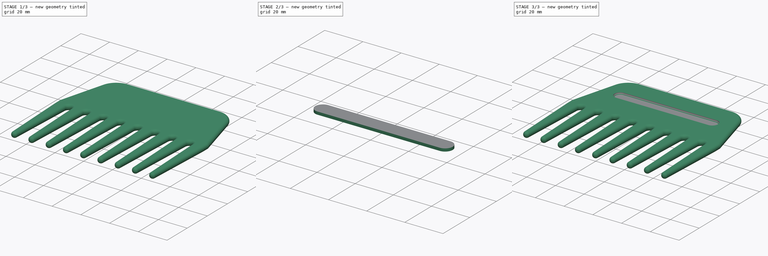
[diagram: build sequence overview — one tinted view per stage of 3, left to right]
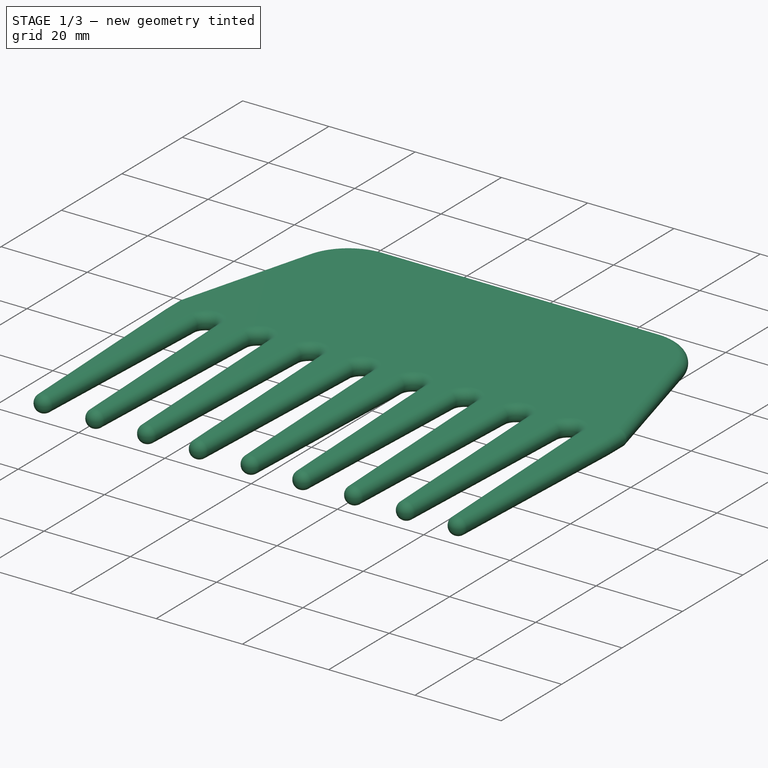
[diagram: stage 1 of 3 — iso view after this stage's code; geometry added in this stage tinted green]
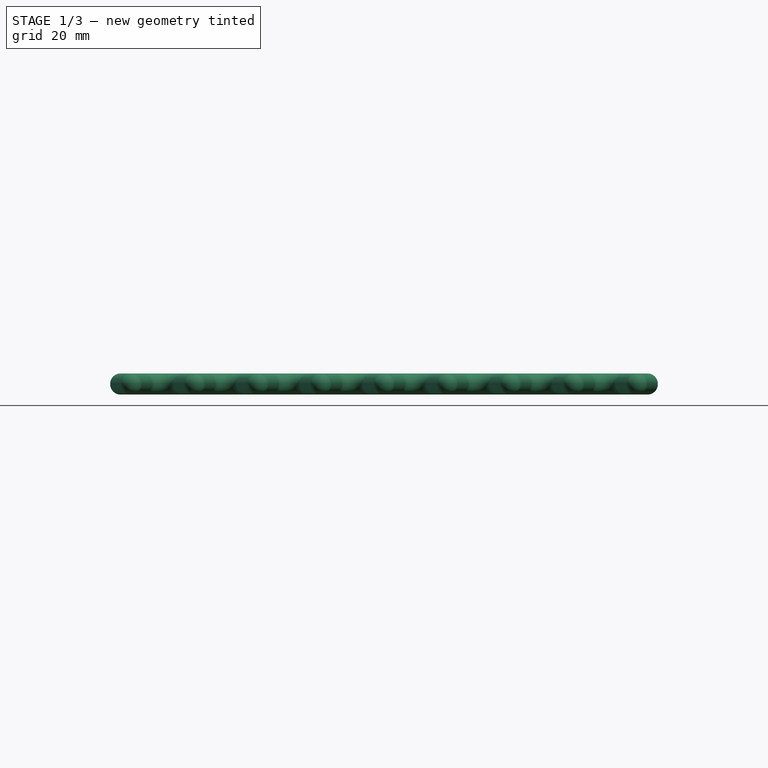
[diagram: stage 1 of 3 — front view after this stage's code; geometry added in this stage tinted green]
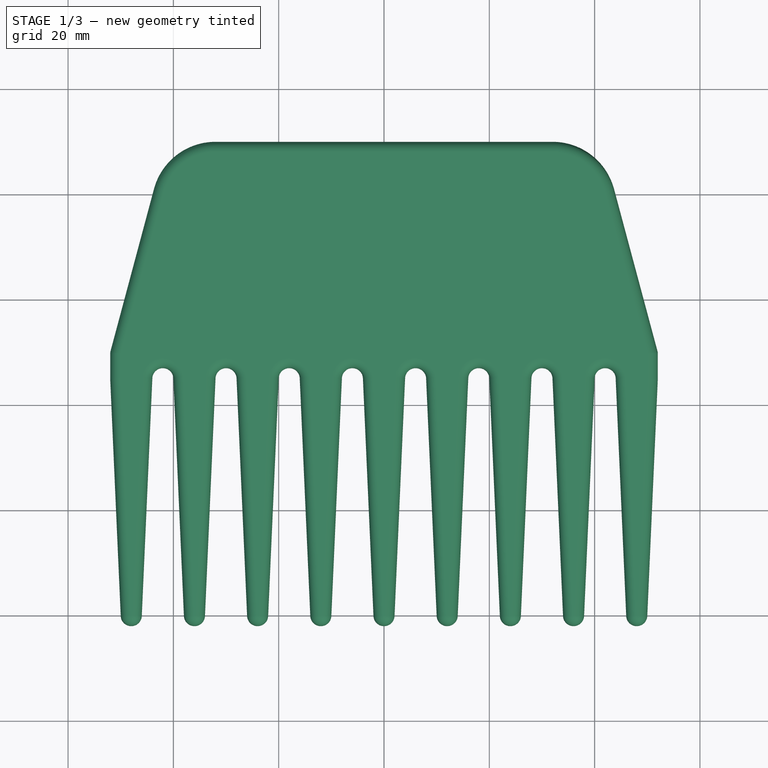
[diagram: stage 1 of 3 — top view after this stage's code; geometry added in this stage tinted green]
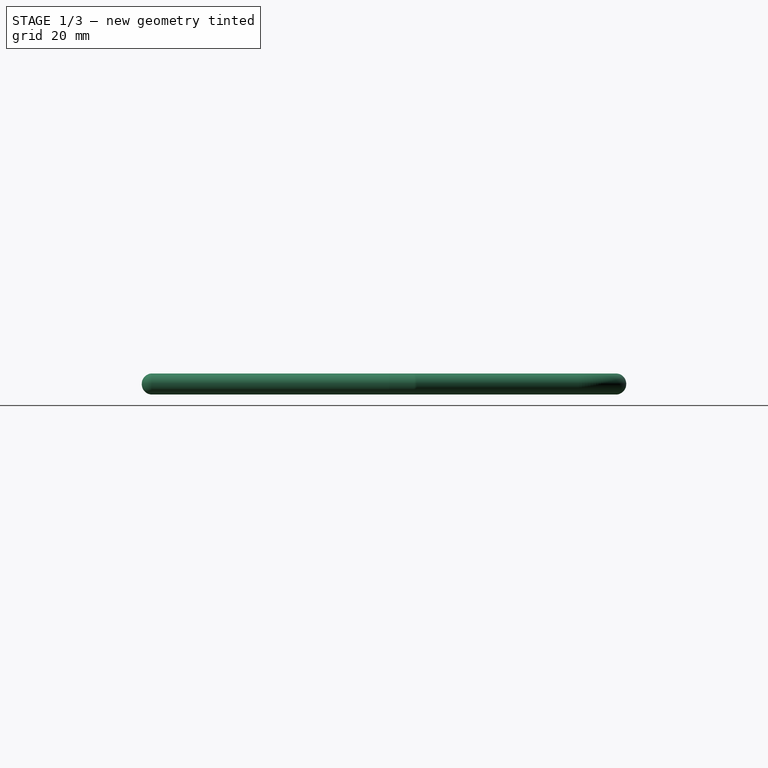
[diagram: stage 1 of 3 — right view after this stage's code; geometry added in this stage tinted green]
FCSTD DOCUMENT  (FreeCAD 0.20RUnknown)
Label: comb
License: All rights reserved
LicenseURL: http://en.wikipedia.org/wiki/All_rights_reserved
objects: Sketcher::SketchObject×2, Part::Extrusion×2, Part::Fillet×2, Part::Cut×1
note: 7 computed .brp shape members not serialized (recipe doc carries the construction recipe); baked Part::Feature solids carry a one-line shape summary decoded from their .brp

FEATURE [Sketcher::SketchObject] Sketch  label="main_s"
  FullyConstrained = true
  sketch-geometry (97):
    g0: ArcOfCircle CenterX=0 CenterY=0 CenterZ=0 NormalX=0 NormalY=0 NormalZ=1 AngleXU=0 Radius=2 StartAngle=3.14159 EndAngle=6.28319
    g1: LineSegment StartX=2 StartY=-5e-16 StartZ=0 EndX=4 EndY=45 EndZ=0
    g2: LineSegment StartX=-2 StartY=2e-16 StartZ=0 EndX=-4 EndY=45 EndZ=0
    g3: ArcOfCircle CenterX=6 CenterY=45 CenterZ=0 NormalX=0 NormalY=0 NormalZ=1 AngleXU=0 Radius=2 StartAngle=4e-16 EndAngle=3.14159
    g4: LineSegment StartX=4 StartY=45 StartZ=0 EndX=6 EndY=45 EndZ=0
    g5: ArcOfCircle CenterX=-6 CenterY=45 CenterZ=0 NormalX=0 NormalY=0 NormalZ=1 AngleXU=0 Radius=2 StartAngle=0 EndAngle=3.14159
    g6: LineSegment StartX=-4 StartY=45 StartZ=0 EndX=-6 EndY=45 EndZ=0
    g7: LineSegment StartX=-6 StartY=45 StartZ=0 EndX=-8 EndY=45 EndZ=0
    g8: LineSegment StartX=8 StartY=45 StartZ=0 EndX=10 EndY=0 EndZ=0
    g9: LineSegment StartX=14 StartY=-5e-16 StartZ=0 EndX=16 EndY=45 EndZ=0
    g10: LineSegment StartX=4 StartY=45 StartZ=0 EndX=-4 EndY=45 EndZ=0
    g11: LineSegment StartX=8 StartY=45 StartZ=0 EndX=16 EndY=45 EndZ=0
    g12: LineSegment StartX=16 StartY=45 StartZ=0 EndX=18 EndY=45 EndZ=0
    g13: LineSegment StartX=18 StartY=45 StartZ=0 EndX=20 EndY=45 EndZ=0
    g14: LineSegment StartX=-2 StartY=2e-16 StartZ=0 EndX=0 EndY=0 EndZ=0
    g15: LineSegment StartX=0 StartY=0 StartZ=0 EndX=2 EndY=-5e-16 EndZ=0
    g16: LineSegment StartX=10 StartY=0 StartZ=0 EndX=12 EndY=0 EndZ=0
    g17: LineSegment StartX=12 StartY=0 StartZ=0 EndX=14 EndY=-5e-16 EndZ=0
    g18: LineSegment StartX=6 StartY=45 StartZ=0 EndX=6 EndY=0 EndZ=0
    g19: LineSegment StartX=2 StartY=-5e-16 StartZ=0 EndX=6 EndY=0 EndZ=0
    g20: LineSegment StartX=6 StartY=0 StartZ=0 EndX=10 EndY=0 EndZ=0
    g21: ArcOfCircle CenterX=12 CenterY=0 CenterZ=0 NormalX=0 NormalY=0 NormalZ=1 AngleXU=0 Radius=2 StartAngle=3.14159 EndAngle=6.28319
    g22: LineSegment StartX=6 StartY=45 StartZ=0 EndX=8 EndY=45 EndZ=0
    g23: ArcOfCircle CenterX=18 CenterY=45 CenterZ=0 NormalX=0 NormalY=0 NormalZ=1 AngleXU=0 Radius=2 StartAngle=0 EndAngle=3.14159
    g24: LineSegment StartX=20 StartY=45 StartZ=0 EndX=22 EndY=0 EndZ=0
    g25: LineSegment StartX=26 StartY=-5e-16 StartZ=0 EndX=28 EndY=45 EndZ=0
    g26: LineSegment StartX=14 StartY=-5e-16 StartZ=0 EndX=22 EndY=0 EndZ=0
    g27: LineSegment StartX=22 StartY=0 StartZ=0 EndX=24 EndY=0 EndZ=0
    g28: LineSegment StartX=24 StartY=0 StartZ=0 EndX=26 EndY=-5e-16 EndZ=0
    g29: LineSegment StartX=26 StartY=-5e-16 StartZ=0 EndX=34 EndY=2e-16 EndZ=0
    g30: LineSegment StartX=34 StartY=2e-16 StartZ=0 EndX=36 EndY=0 EndZ=0
    g31: LineSegment StartX=36 StartY=0 StartZ=0 EndX=38 EndY=0 EndZ=0
    g32: LineSegment StartX=38 StartY=0 StartZ=0 EndX=46 EndY=2e-16 EndZ=0
    g33: LineSegment StartX=46 StartY=2e-16 StartZ=0 EndX=48 EndY=0 EndZ=0
    g34: LineSegment StartX=48 StartY=0 StartZ=0 EndX=50 EndY=0 EndZ=0
    g35: LineSegment StartX=20 StartY=45 StartZ=0 EndX=28 EndY=45 EndZ=0
    g36: LineSegment StartX=28 StartY=45 StartZ=0 EndX=30 EndY=45 EndZ=0
    g37: LineSegment StartX=30 StartY=45 StartZ=0 EndX=32 EndY=45 EndZ=0
    g38: LineSegment StartX=32 StartY=45 StartZ=0 EndX=40 EndY=45 EndZ=0
    g39: LineSegment StartX=40 StartY=45 StartZ=0 EndX=42 EndY=45 EndZ=0
    g40: LineSegment StartX=42 StartY=45 StartZ=0 EndX=44 EndY=45 EndZ=0
    g41: LineSegment StartX=44 StartY=45 StartZ=0 EndX=52 EndY=45 EndZ=0
    g42: ArcOfCircle CenterX=30 CenterY=45 CenterZ=0 NormalX=0 NormalY=0 NormalZ=1 AngleXU=0 Radius=2 StartAngle=0 EndAngle=3.14159
    g43: ArcOfCircle CenterX=42 CenterY=45 CenterZ=0 NormalX=0 NormalY=0 NormalZ=1 AngleXU=0 Radius=2 StartAngle=0 EndAngle=3.14159
    g44: ArcOfCircle CenterX=24 CenterY=0 CenterZ=0 NormalX=0 NormalY=0 NormalZ=1 AngleXU=0 Radius=2 StartAngle=3.14159 EndAngle=6.28319
    g45: ArcOfCircle CenterX=36 CenterY=0 CenterZ=0 NormalX=0 NormalY=0 NormalZ=1 AngleXU=0 Radius=2 StartAngle=3.14159 EndAngle=6.28319
    g46: ArcOfCircle CenterX=48 CenterY=0 CenterZ=0 NormalX=0 NormalY=0 NormalZ=1 AngleXU=0 Radius=2 StartAngle=3.14159 EndAngle=6.28319
    g47: LineSegment StartX=32 StartY=45 StartZ=0 EndX=34 EndY=0 EndZ=0
    g48: LineSegment StartX=38 StartY=0 StartZ=0 EndX=40 EndY=45 EndZ=0
    g49: LineSegment StartX=44 StartY=45 StartZ=0 EndX=46 EndY=0 EndZ=0
    g50: LineSegment StartX=50 StartY=0 StartZ=0 EndX=52 EndY=45 EndZ=0
    g51: LineSegment StartX=-2 StartY=2e-16 StartZ=0 EndX=-10 EndY=-5e-16 EndZ=0
    g52: LineSegment StartX=-10 StartY=-5e-16 StartZ=0 EndX=-12 EndY=0 EndZ=0
    g53: LineSegment StartX=-12 StartY=0 StartZ=0 EndX=-14 EndY=2e-16 EndZ=0
    g54: LineSegment StartX=-14 StartY=2e-16 StartZ=0 EndX=-22 EndY=-5e-16 EndZ=0
    g55: LineSegment StartX=-22 StartY=-5e-16 StartZ=0 EndX=-24 EndY=0 EndZ=0
    g56: LineSegment StartX=-24 StartY=0 StartZ=0 EndX=-22 EndY=0 EndZ=0
    g57: LineSegment StartX=-26 StartY=2e-16 StartZ=0 EndX=-34 EndY=-5e-16 EndZ=0
    g58: LineSegment StartX=-34 StartY=-5e-16 StartZ=0 EndX=-36 EndY=0 EndZ=0
    g59: LineSegment StartX=-36 StartY=0 StartZ=0 EndX=-38 EndY=0 EndZ=0
    g60: LineSegment StartX=-8 StartY=45 StartZ=0 EndX=-10 EndY=0 EndZ=0
    g61: LineSegment StartX=-8 StartY=45 StartZ=0 EndX=-16 EndY=45 EndZ=0
    g62: LineSegment StartX=-16 StartY=45 StartZ=0 EndX=-18 EndY=45 EndZ=0
    g63: LineSegment StartX=-18 StartY=45 StartZ=0 EndX=-20 EndY=45 EndZ=0
    g64: LineSegment StartX=-20 StartY=45 StartZ=0 EndX=-28 EndY=45 EndZ=0
    g65: LineSegment StartX=-28 StartY=45 StartZ=0 EndX=-30 EndY=45 EndZ=0
    g66: LineSegment StartX=-30 StartY=45 StartZ=0 EndX=-32 EndY=45 EndZ=0
    g67: LineSegment StartX=-32 StartY=45 StartZ=0 EndX=-40 EndY=45 EndZ=0
    g68: LineSegment StartX=-40 StartY=45 StartZ=0 EndX=-42 EndY=45 EndZ=0
    g69: LineSegment StartX=-42 StartY=45 StartZ=0 EndX=-44 EndY=45 EndZ=0
    g70: LineSegment StartX=-44 StartY=45 StartZ=0 EndX=-52 EndY=45 EndZ=0
    g71: LineSegment StartX=-14 StartY=2e-16 StartZ=0 EndX=-16 EndY=45 EndZ=0
    g72: LineSegment StartX=-22 StartY=-5e-16 StartZ=0 EndX=-20 EndY=45 EndZ=0
    g73: ArcOfCircle CenterX=-18 CenterY=45 CenterZ=0 NormalX=0 NormalY=0 NormalZ=1 AngleXU=0 Radius=2 StartAngle=0 EndAngle=3.14159
    g74: ArcOfCircle CenterX=-12 CenterY=0 CenterZ=0 NormalX=0 NormalY=0 NormalZ=1 AngleXU=0 Radius=2 StartAngle=3.14159 EndAngle=6.28319
    g75: ArcOfCircle CenterX=-24 CenterY=0 CenterZ=0 NormalX=0 NormalY=0 NormalZ=1 AngleXU=0 Radius=2 StartAngle=3.14159 EndAngle=6.28319
    g76: LineSegment StartX=-24 StartY=0 StartZ=0 EndX=-26 EndY=2e-16 EndZ=0
    g77: LineSegment StartX=-26 StartY=2e-16 StartZ=0 EndX=-28 EndY=45 EndZ=0
    g78: LineSegment StartX=-32 StartY=45 StartZ=0 EndX=-34 EndY=0 EndZ=0
    g79: ArcOfCircle CenterX=-30 CenterY=45 CenterZ=0 NormalX=0 NormalY=0 NormalZ=1 AngleXU=0 Radius=2 StartAngle=0 EndAngle=3.14159
    g80: ArcOfCircle CenterX=-36 CenterY=0 CenterZ=0 NormalX=0 NormalY=0 NormalZ=1 AngleXU=0 Radius=2 StartAngle=3.14159 EndAngle=6.28319
    g81: LineSegment StartX=-38 StartY=0 StartZ=0 EndX=-40 EndY=45 EndZ=0
    g82: LineSegment StartX=-38 StartY=0 StartZ=0 EndX=-46 EndY=-5e-16 EndZ=0
    g83: LineSegment StartX=-46 StartY=-5e-16 StartZ=0 EndX=-48 EndY=0 EndZ=0
    g84: LineSegment StartX=-48 StartY=0 StartZ=0 EndX=-50 EndY=2e-16 EndZ=0
    g85: ArcOfCircle CenterX=-48 CenterY=0 CenterZ=0 NormalX=0 NormalY=0 NormalZ=1 AngleXU=0 Radius=2 StartAngle=3.14159 EndAngle=6.28319
    g86: LineSegment StartX=-44 StartY=45 StartZ=0 EndX=-46 EndY=0 EndZ=0
    g87: ArcOfCircle CenterX=-42 CenterY=45 CenterZ=0 NormalX=0 NormalY=0 NormalZ=1 AngleXU=0 Radius=2 StartAngle=0 EndAngle=3.14159
    g88: LineSegment StartX=-52 StartY=45 StartZ=0 EndX=-50 EndY=0 EndZ=0
    g89: LineSegment StartX=-52 StartY=45 StartZ=0 EndX=-52 EndY=50 EndZ=0
    g90: LineSegment StartX=-52 StartY=50 StartZ=0 EndX=-43.6844 EndY=81.0342 EndZ=0
    g91: LineSegment StartX=-32 StartY=90 StartZ=0 EndX=0 EndY=90 EndZ=0
    g92: ArcOfCircle CenterX=-32 CenterY=77.9034 CenterZ=0 NormalX=0 NormalY=0 NormalZ=1 AngleXU=0 Radius=12.0966 StartAngle=1.5708 EndAngle=2.87979
    g93: LineSegment StartX=0 StartY=90 StartZ=0 EndX=32 EndY=90 EndZ=0
    g94: LineSegment StartX=52 StartY=45 StartZ=0 EndX=52 EndY=50 EndZ=0
    g95: LineSegment StartX=52 StartY=50 StartZ=0 EndX=43.6844 EndY=81.0342 EndZ=0
    g96: ArcOfCircle CenterX=32 CenterY=77.9034 CenterZ=0 NormalX=0 NormalY=0 NormalZ=1 AngleXU=0 Radius=12.0966 StartAngle=0.261799 EndAngle=1.5708
  constraints (252):
    c: Coincident(g0,g-1)
    c: PointOnObject(g0,g-1)
    c: PointOnObject(g0,g-1)
    c: DistanceX(g0,g0) = 4
    c: Coincident(g1,g0)
    c: Coincident(g2,g0)
    c: Symmetric(g2,g1,g-2)
    c: DistanceX(g2,g1) = 8
    c: Coincident(g3,g1)
    c: Coincident(g4,g1)
    c: Coincident(g4,g3)
    c: Horizontal(g4)
    c: DistanceX(g1,g3) = 4
    c: Coincident(g5,g2)
    c: Coincident(g6,g2)
    c: Coincident(g6,g5)
    c: Horizontal(g6)
    c: Coincident(g7,g5)
    c: Coincident(g7,g5)
    c: Horizontal(g7)
    c: Equal(g4,g6)
    c: DistanceY(g0,g3) = 45
    c: Coincident(g8,g3)
    c: PointOnObject(g8,g-1)
    c: PointOnObject(g9,g-1)
    c: Coincident(g10,g1)
    c: Coincident(g2,g10)
    c: Coincident(g11,g3)
    c: Coincident(g11,g9)
    c: Horizontal(g11)
    c: Equal(g10,g11)
    c: Coincident(g12,g9)
    c: Horizontal(g12)
    c: Coincident(g13,g12)
    c: Horizontal(g13)
    c: Coincident(g14,g0)
    c: Coincident(g15,g14)
    c: Coincident(g15,g0)
    c: Coincident(g0,g14)
    c: Coincident(g16,g8)
    c: PointOnObject(g16,g-1)
    c: Coincident(g17,g16)
    c: Coincident(g17,g9)
    c: Equal(g14,g16)
    c: Coincident(g18,g3)
    c: PointOnObject(g18,g-1)
    c: Vertical(g18)
    c: Coincident(g19,g0)
    c: Coincident(g19,g18)
    c: Coincident(g20,g18)
    c: Coincident(g20,g8)
    c: Equal(g19,g20)
    c: Coincident(g21,g16)
    c: Coincident(g21,g8)
    c: Coincident(g22,g3)
    c: Coincident(g22,g3)
    c: Horizontal(g22)
    c: Coincident(g21,g9)
    c: Coincident(g23,g12)
    c: Coincident(g23,g9)
    c: Coincident(g23,g13)
    c: Coincident(g24,g23)
    c: PointOnObject(g24,g-1)
    c: PointOnObject(g25,g-1)
    c: Coincident(g26,g9)
    c: Coincident(g26,g24)
    c: Coincident(g27,g24)
    c: PointOnObject(g27,g-1)
    c: Coincident(g28,g27)
    c: Coincident(g28,g25)
    c: Coincident(g29,g25)
    c: PointOnObject(g29,g-1)
    c: Coincident(g30,g29)
    c: PointOnObject(g30,g-1)
    c: Coincident(g31,g30)
    c: PointOnObject(g31,g-1)
    c: Coincident(g32,g31)
    c: PointOnObject(g32,g-1)
    c: Coincident(g33,g32)
    c: PointOnObject(g33,g-1)
    c: Coincident(g34,g33)
    c: PointOnObject(g34,g-1)
    c: DistanceX(g26,g26) = 8
    c: Equal(g17,g27)
    c: Equal(g26,g29)
    c: Equal(g28,g30)
    c: Equal(g32,g29)
    c: Equal(g31,g33)
    c: Equal(g22,g12)
    c: Coincident(g35,g23)
    c: Coincident(g35,g25)
    c: Horizontal(g35)
    c: Equal(g11,g35)
    c: Coincident(g36,g25)
    c: Horizontal(g36)
    c: Coincident(g37,g36)
    c: Horizontal(g37)
    c: Coincident(g38,g37)
    c: Horizontal(g38)
    c: Coincident(g39,g38)
    c: Horizontal(g39)
    c: Coincident(g40,g39)
    c: Horizontal(g40)
    c: Coincident(g41,g40)
    c: Horizontal(g41)
    c: Equal(g13,g36)
    c: Equal(g35,g38)
    c: Equal(g37,g39)
    c: Equal(g38,g41)
    c: Coincident(g42,g36)
    c: Coincident(g42,g25)
    c: Coincident(g42,g37)
    c: Coincident(g43,g39)
    c: Coincident(g43,g38)
    c: Coincident(g43,g40)
    c: Coincident(g44,g27)
    c: Coincident(g44,g24)
    c: Coincident(g44,g25)
    c: Coincident(g45,g30)
    c: Coincident(g45,g29)
    c: Coincident(g45,g31)
    c: Coincident(g46,g33)
    c: Coincident(g46,g32)
    c: Coincident(g46,g34)
    c: Coincident(g47,g42)
    c: Coincident(g47,g45)
    c: Coincident(g48,g45)
    c: Coincident(g49,g46)
    c: Coincident(g50,g46)
    c: Coincident(g43,g48)
    c: Coincident(g43,g49)
    c: Coincident(g50,g41)
    c: Coincident(g51,g0)
    c: PointOnObject(g51,g-1)
    c: Coincident(g52,g51)
    c: PointOnObject(g52,g-1)
    c: Coincident(g53,g52)
    c: PointOnObject(g53,g-1)
    c: Coincident(g54,g53)
    c: PointOnObject(g54,g-1)
    c: Coincident(g55,g54)
    c: Coincident(g56,g55)
    c: PointOnObject(g56,g-1)
    c: PointOnObject(g57,g-1)
    c: PointOnObject(g57,g-1)
    c: Coincident(g58,g57)
    c: PointOnObject(g58,g-1)
    c: Coincident(g59,g58)
    c: PointOnObject(g59,g-1)
    c: Equal(g26,g51)
    c: Equal(g14,g52)
    c: Equal(g51,g54)
    c: Equal(g53,g55)
    c: Equal(g55,g56)
    c: Coincident(g60,g5)
    c: Coincident(g60,g51)
    c: Coincident(g61,g5)
    c: Horizontal(g61)
    c: Coincident(g62,g61)
    c: Horizontal(g62)
    c: Coincident(g63,g62)
    c: Horizontal(g63)
    c: Coincident(g64,g63)
    c: Horizontal(g64)
    c: Horizontal(g65)
    c: Coincident(g66,g65)
    c: Horizontal(g66)
    c: Coincident(g67,g66)
    c: Horizontal(g67)
    c: Equal(g11,g61)
    c: Equal(g62,g7)
    c: Equal(g64,g61)
    c: Coincident(g65,g64)
    c: Equal(g63,g65)
    c: Equal(g64,g67)
    c: Coincident(g68,g67)
    c: Horizontal(g68)
    c: Coincident(g69,g68)
    c: Horizontal(g69)
    c: Coincident(g70,g69)
    c: Horizontal(g70)
    c: Equal(g66,g68)
    c: Equal(g67,g70)
    c: Coincident(g61,g71)
    c: Coincident(g71,g53)
    c: Coincident(g63,g72)
    c: Coincident(g72,g54)
    c: PointOnObject(g55,g-1)
    c: Equal(g54,g57)
    c: Coincident(g73,g62)
    c: Coincident(g73,g72)
    c: Coincident(g73,g71)
    c: Coincident(g74,g52)
    c: Coincident(g74,g71)
    c: Coincident(g74,g60)
    c: Coincident(g55,g75)
    c: Coincident(g75,g72)
    c: Coincident(g76,g75)
    c: Coincident(g76,g57)
    c: Coincident(g57,g75)
    c: Coincident(g77,g75)
    c: Coincident(g64,g77)
    c: Coincident(g78,g66)
    c: Coincident(g57,g78)
    c: Coincident(g79,g65)
    c: Coincident(g79,g77)
    c: Coincident(g79,g78)
    c: Coincident(g80,g58)
    c: Coincident(g80,g78)
    c: Coincident(g80,g59)
    c: Equal(g58,g76)
    c: Coincident(g81,g80)
    c: Coincident(g81,g67)
    c: Coincident(g82,g80)
    c: PointOnObject(g82,g-1)
    c: Coincident(g83,g82)
    c: PointOnObject(g83,g-1)
    c: Coincident(g84,g83)
    c: PointOnObject(g84,g-1)
    c: Equal(g57,g82)
    c: Coincident(g85,g83)
    c: Coincident(g85,g84)
    c: Coincident(g85,g82)
    c: Coincident(g85,g86)
    c: Coincident(g86,g69)
    c: Coincident(g87,g68)
    c: Coincident(g87,g81)
    c: Coincident(g87,g86)
    c: Coincident(g88,g70)
    c: Coincident(g88,g85)
    c: Equal(g83,g58)
    c: Coincident(g89,g88)
    c: Vertical(g89)
    c: Coincident(g90,g89)
    c: PointOnObject(g91,g-2)
    c: Horizontal(g91)
    c: DistanceY(g89,g89) = 5
    c: Tangent(g92,g91) = 1.5708
    c: Tangent(g92,g90) = 1.5708
    c: DistanceY(g2,g91) = 45
    c: Angle(g89,g90) = 2.87979
    c: Coincident(g93,g91)
    c: Horizontal(g93)
    c: Coincident(g94,g50)
    c: Vertical(g94)
    c: Coincident(g95,g94)
    c: Equal(g94,g89)
    c: Angle(g95,g94) = 2.87979
    c: Tangent(g96,g93) = 1.5708
    c: Tangent(g96,g95) = -1.5708
    c: Equal(g93,g91)
    c: DistanceX(g91,g91) = 32
FEATURE [Part::Extrusion] Extrude  label="main_e"
  Base = -> Sketch
  Dir = (0,0,1)
  DirMode = 2
  FaceMakerClass = Part::FaceMakerBullseye
  LengthFwd = 4
  LengthRev = 0
  Solid = true
  Symmetric = false
FEATURE [Part::Fillet] Fillet  label="main_fillet"
  Base = -> Extrude
  Edges = 124 edges r=1.95: [Edge1,Edge2,Edge3,Edge4,Edge5,Edge6,Edge7,Edge8,Edge9,Edge10,Edge11,Edge12,Edge13,Edge14,Edge15,Edge16,Edge17,Edge18,Edge19,Edge20,Edge21,Edge22,Edge23,Edge24,Edge25,Edge26,Edge27,Edge28,Edge29,Edge30,Edge31,Edge32,Edge33,Edge34,Edge35,Edge36,Edge37,Edge38,Edge39,Edge40,Edge41,Edge42,Edge43,Edge44,+80 more]
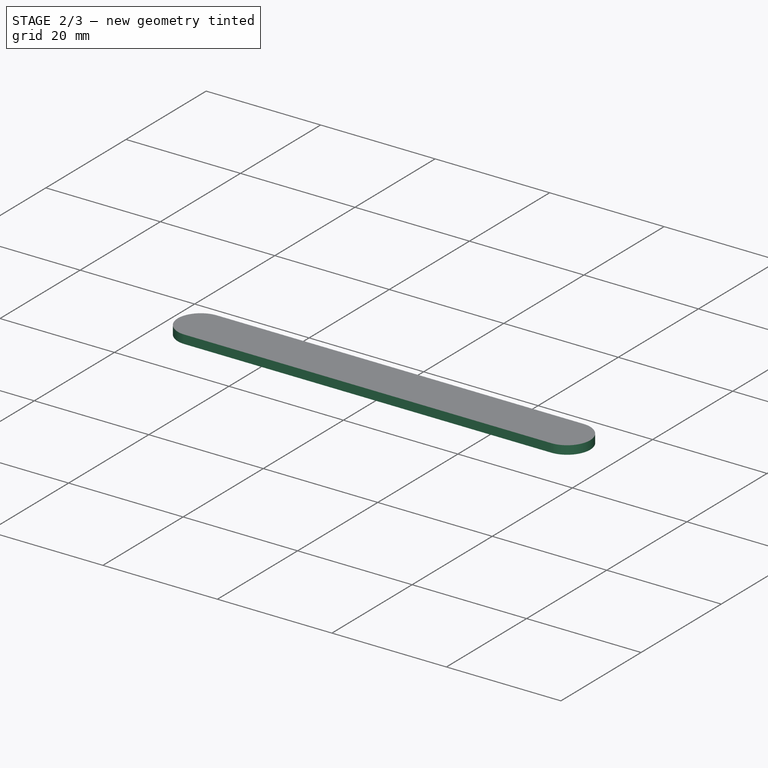
[diagram: stage 2 of 3 — iso view after this stage's code; geometry added in this stage tinted green]
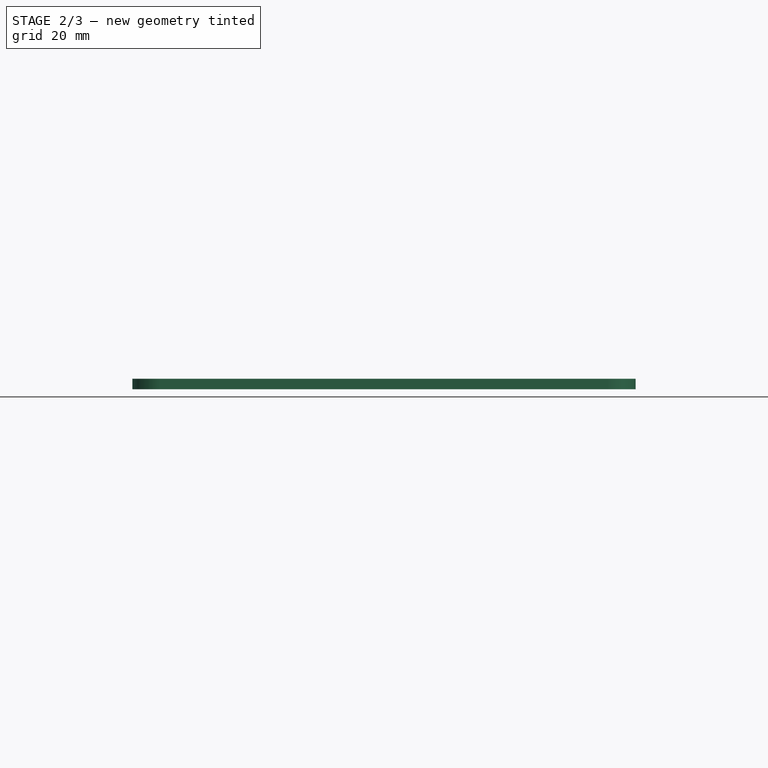
[diagram: stage 2 of 3 — front view after this stage's code; geometry added in this stage tinted green]
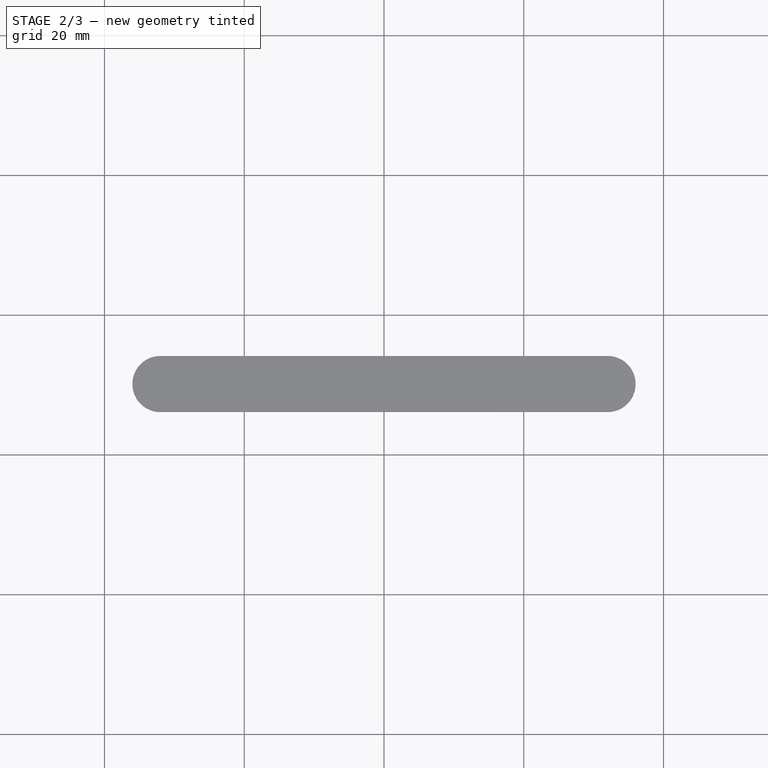
[diagram: stage 2 of 3 — top view after this stage's code; geometry added in this stage tinted green]
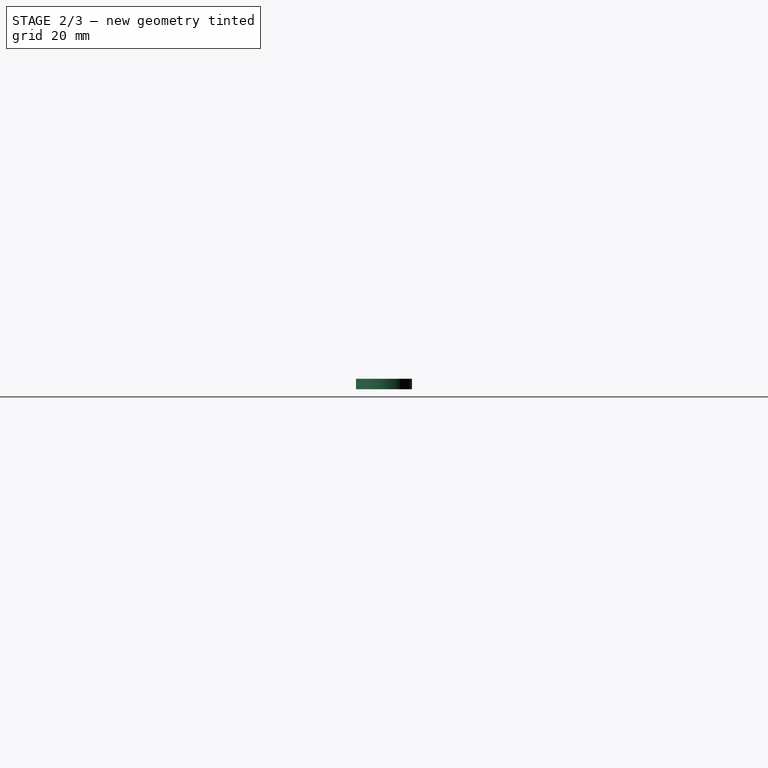
[diagram: stage 2 of 3 — right view after this stage's code; geometry added in this stage tinted green]
FEATURE [Sketcher::SketchObject] Sketch001  label="hole_s"
  ExternalGeometry = -> [Fillet]
  FullyConstrained = true
  MapMode = 5
  Placement = pos=(0,0,4) rot=(0,0,1;0rad)
  Support = -> [Fillet]
  sketch-geometry (7):
    g0: ArcOfCircle CenterX=-32 CenterY=70.124 CenterZ=0 NormalX=0 NormalY=0 NormalZ=1 AngleXU=0 Radius=4 StartAngle=1.5708 EndAngle=4.71239
    g1: ArcOfCircle CenterX=32 CenterY=70.124 CenterZ=0 NormalX=0 NormalY=0 NormalZ=1 AngleXU=0 Radius=4 StartAngle=4.71239 EndAngle=7.85398
    g2: LineSegment StartX=-32 StartY=66.124 StartZ=0 EndX=32 EndY=66.124 EndZ=0
    g3: LineSegment StartX=32 StartY=74.124 StartZ=0 EndX=-32 EndY=74.124 EndZ=0
    g4: LineSegment StartX=-51.9336 StartY=50.248 StartZ=0 EndX=51.9336 EndY=50.248 EndZ=0
    g5: LineSegment StartX=-32 StartY=66.124 StartZ=0 EndX=-32 EndY=50.248 EndZ=0
    g6: LineSegment StartX=-32 StartY=74.124 StartZ=0 EndX=-32 EndY=90 EndZ=0
  constraints (17):
    c: Tangent(g0,g2) = -1.5708
    c: Tangent(g2,g1) = -1.5708
    c: Tangent(g1,g3) = -1.5708
    c: Tangent(g3,g0) = -1.5708
    c: Equal(g0,g1)
    c: Symmetric(g0,g1,g-2)
    c: DistanceY(g1,g1) = 8
    c: DistanceX(g0,g1) = 64
    c: Coincident(g4,g-3)
    c: Coincident(g4,g-4)
    c: Coincident(g5,g0)
    c: PointOnObject(g5,g4)
    c: Vertical(g5)
    c: Coincident(g6,g0)
    c: PointOnObject(g6,g-6)
    c: Vertical(g6)
    c: Equal(g6,g5)
FEATURE [Part::Extrusion] Extrude001  label="hole_e"
  Base = -> Sketch001
  Dir = (0,0,1)
  DirMode = 2
  FaceMakerClass = Part::FaceMakerBullseye
  LengthFwd = 0
  LengthRev = 1.5
  Solid = true
  Symmetric = false
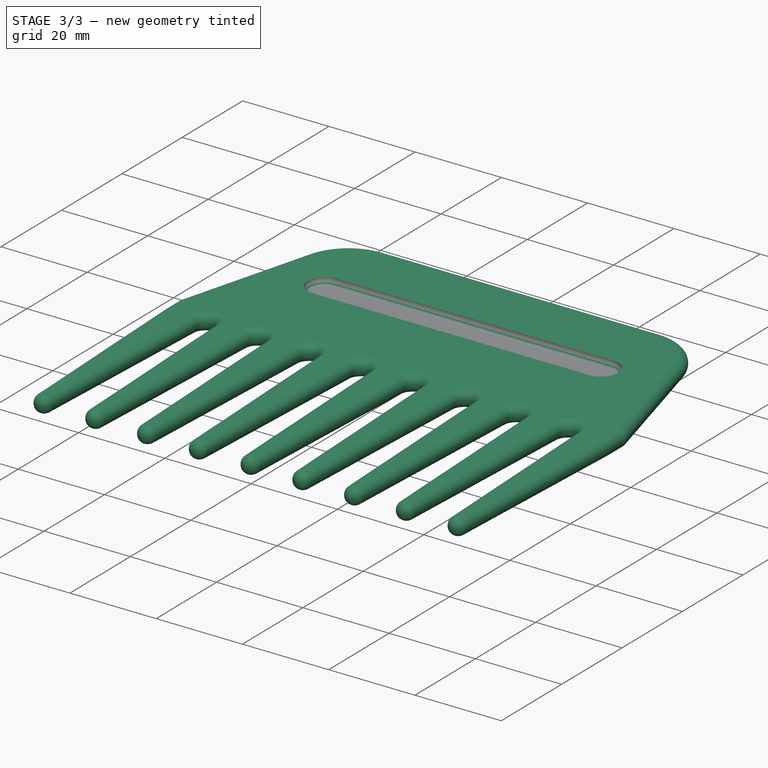
[diagram: stage 3 of 3 — iso view after this stage's code; geometry added in this stage tinted green]
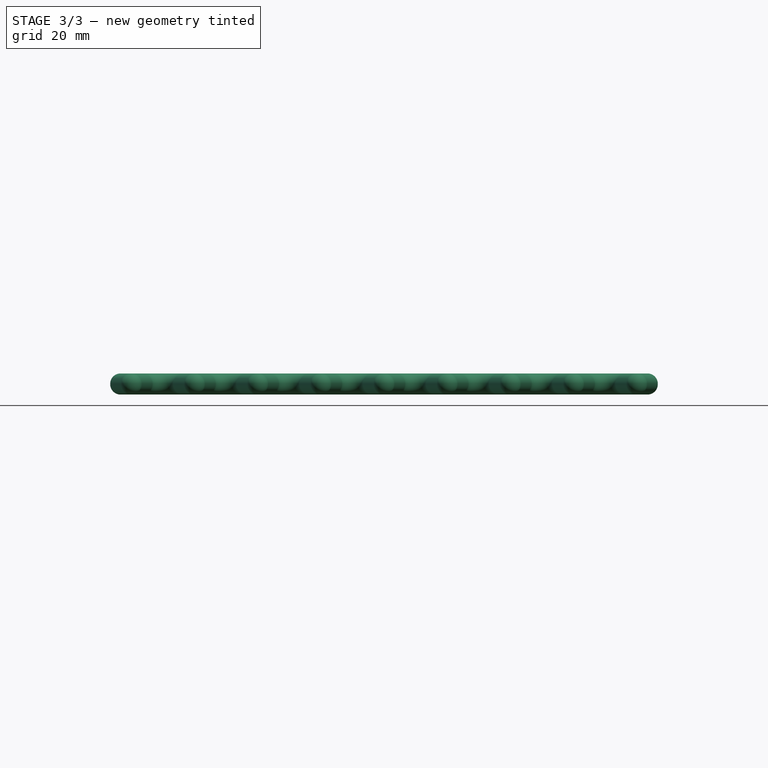
[diagram: stage 3 of 3 — front view after this stage's code; geometry added in this stage tinted green]
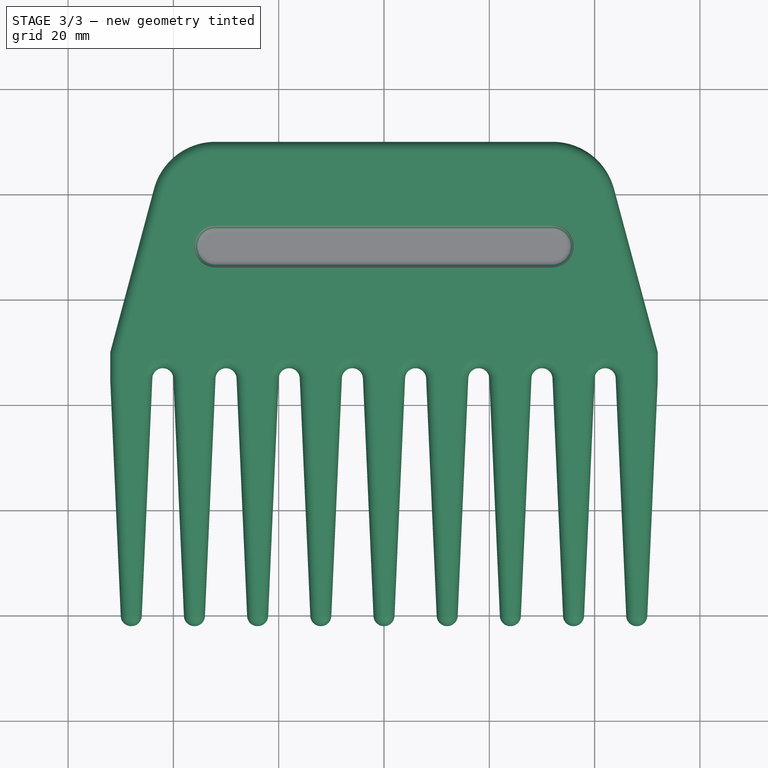
[diagram: stage 3 of 3 — top view after this stage's code; geometry added in this stage tinted green]
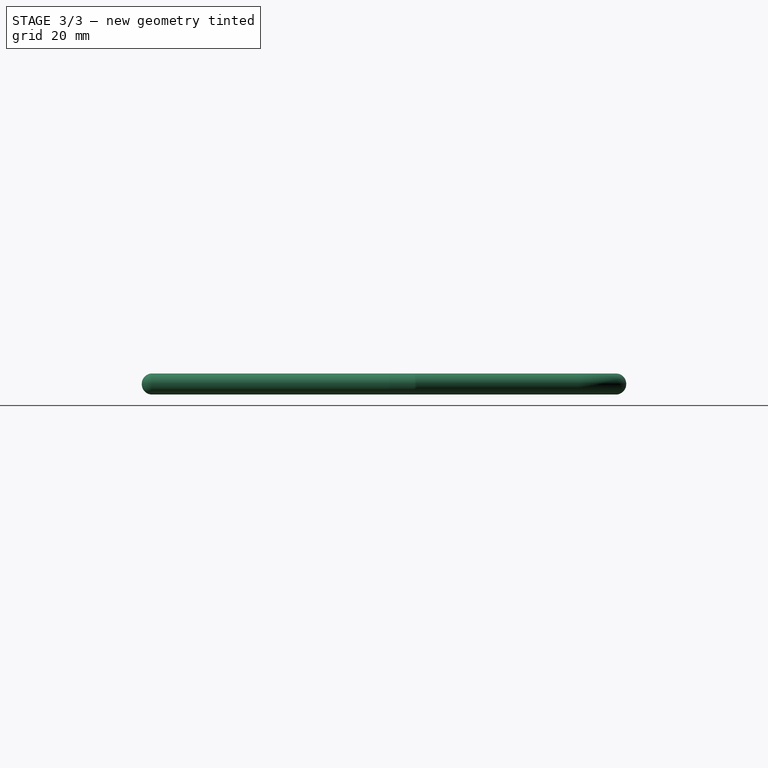
[diagram: stage 3 of 3 — right view after this stage's code; geometry added in this stage tinted green]
FEATURE [Part::Fillet] Fillet001
  Base = -> Extrude001
  Edges = 4 edges r=1.4: [Edge3,Edge6,Edge9,Edge11]
FEATURE [Part::Cut] Cut  label="comb"
  Base = -> Fillet
  Tool = -> Fillet001
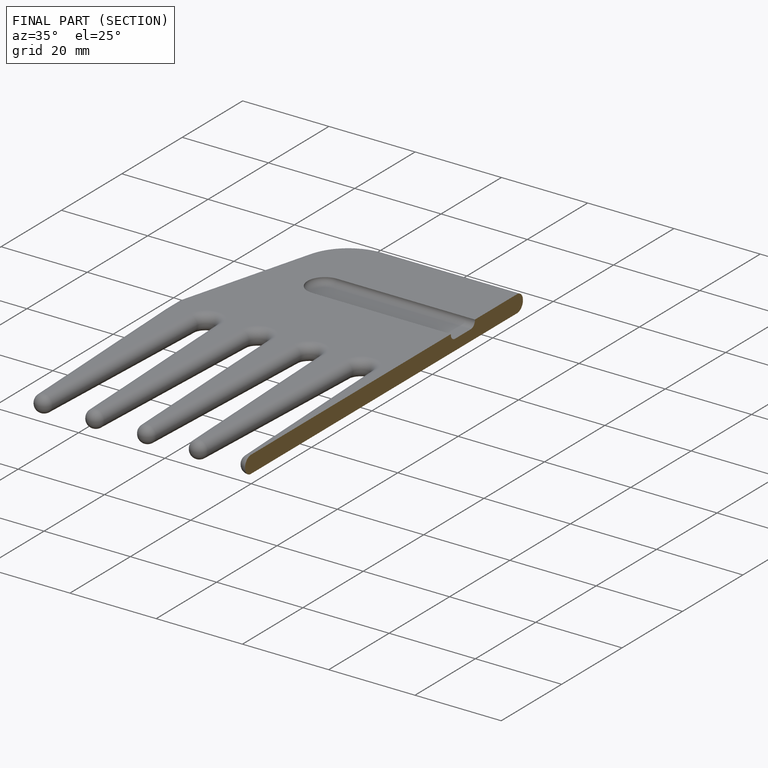
[diagram: finished part — half-section view (interior)]
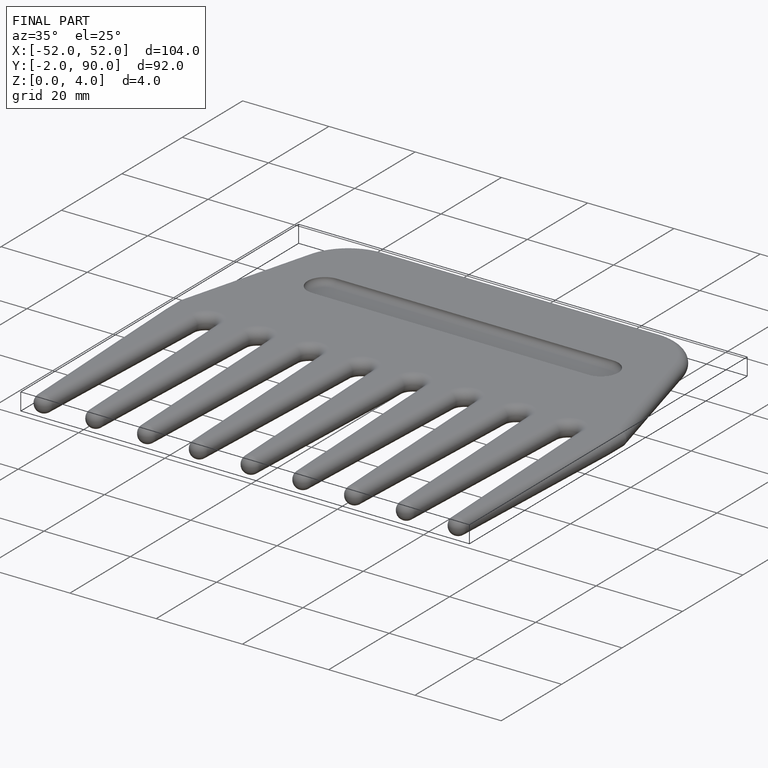
[diagram: finished part — iso view with bounding-box wireframe]
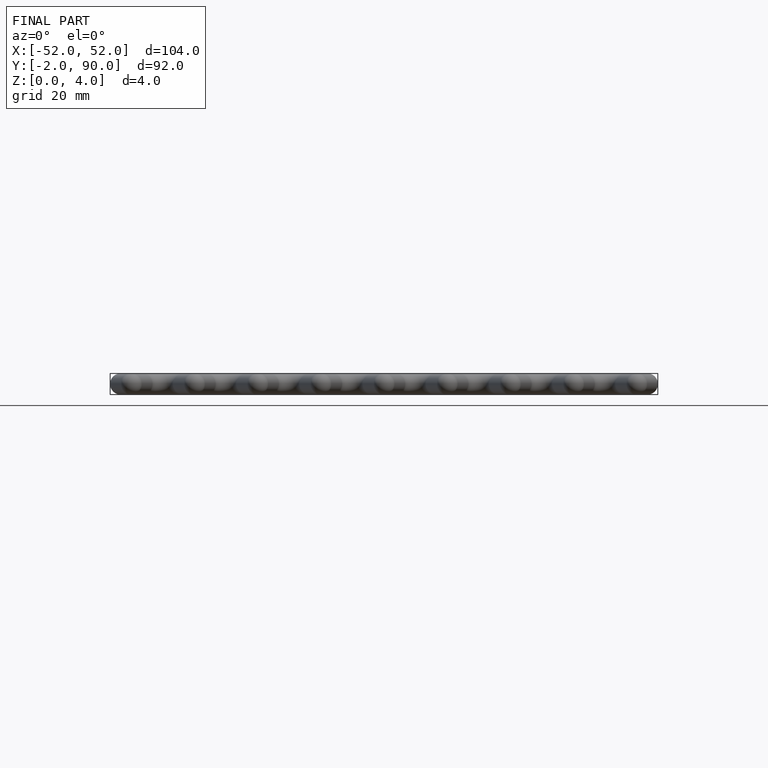
[diagram: finished part — front view with bounding-box wireframe]
